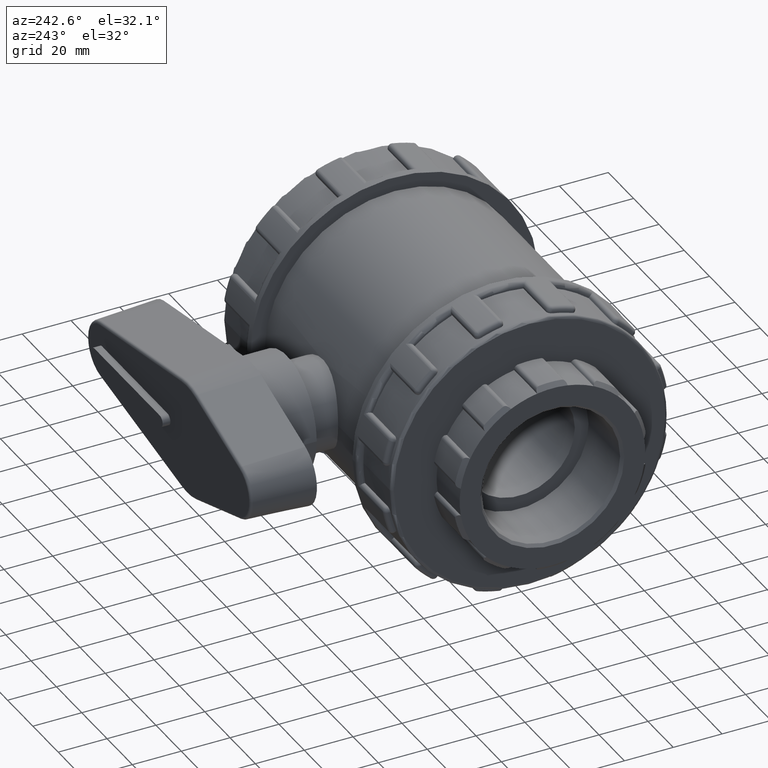
[diagram: clean part render]
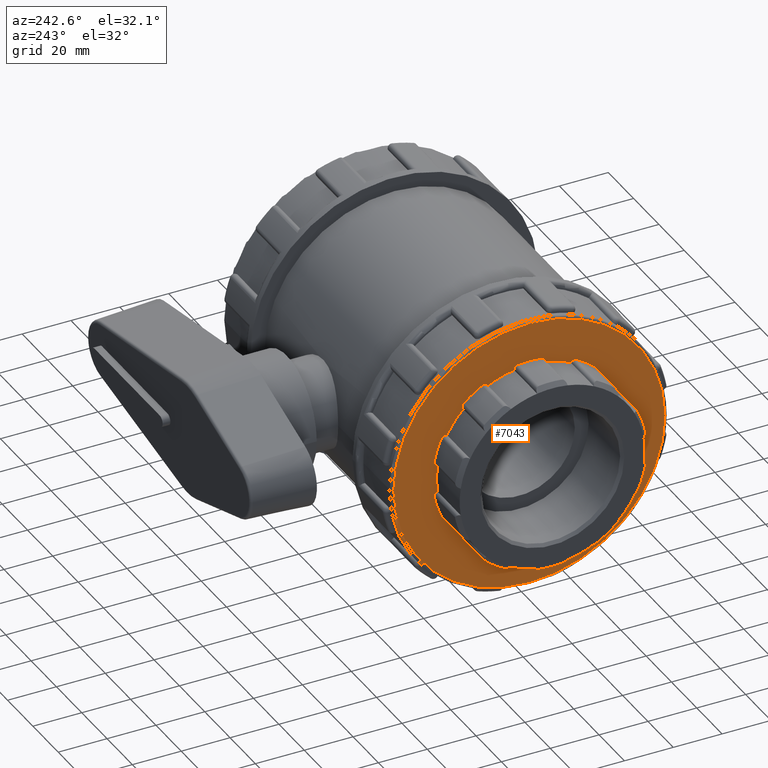
[diagram: same view with one face highlighted and labeled with its STEP entity id]
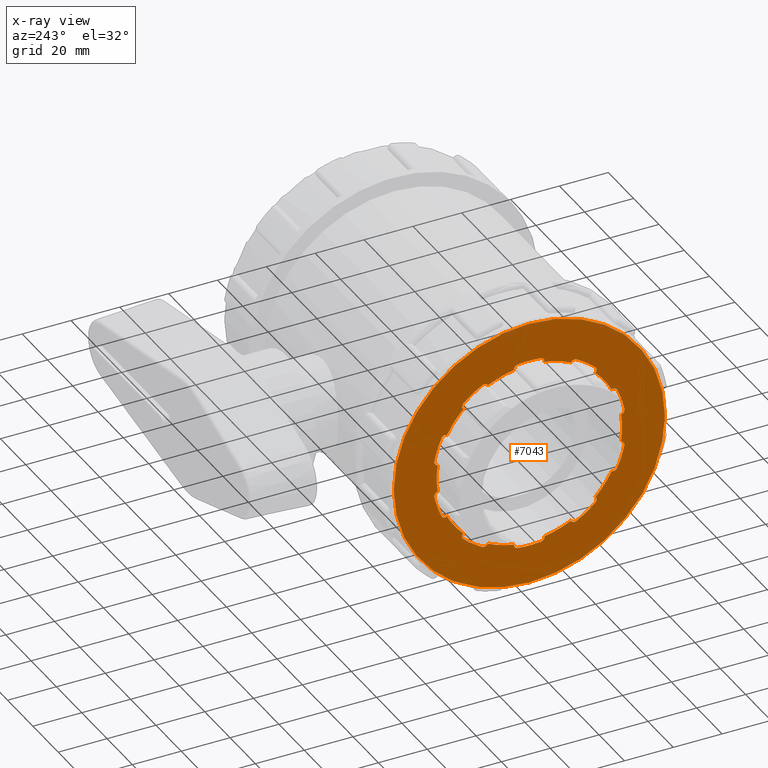
[diagram: x-ray of the same camera — body ghosted, the highlighted face saturated]
A machine part, auxiliary view. The second image highlights one B-rep face of the part: STEP entity #7043.
The next image is the same camera in x-ray: the body ghosted, the highlighted face saturated — about 0% of this face is hidden behind the body in this view.
In plain terms, the highlighted planar face has unit normal (-1, 0, 0).
Its self-contained STEP definition (entity closure, byte-faithful):
#217=FACE_BOUND('',#1298,.T.);
#335=PLANE('',#7994);
#846=FACE_OUTER_BOUND('',#1297,.T.);
#1297=EDGE_LOOP('',(#6298));
#1298=EDGE_LOOP('',(#6299,#6300,#6301,#6302,#6303,#6304,#6305,#6306,#6307,
#6308,#6309,#6310,#6311,#6312,#6313,#6314,#6315,#6316,#6317,#6318,#6319,
#6320,#6321,#6322,#6323,#6324,#6325,#6326,#6327,#6328,#6329,#6330,#6331,
#6332,#6333,#6334,#6335,#6336,#6337,#6338));
#2133=CIRCLE('',#7106,1.69968000000001);
#2136=CIRCLE('',#7111,39.6592);
#2137=CIRCLE('',#7113,1.69968);
#2144=CIRCLE('',#7125,1.69968);
#2147=CIRCLE('',#7130,39.6592);
#2148=CIRCLE('',#7132,1.69968);
#2153=CIRCLE('',#7141,1.69968);
#2156=CIRCLE('',#7146,39.6592);
#2157=CIRCLE('',#7148,1.69968);
#2162=CIRCLE('',#7157,1.69968);
#2165=CIRCLE('',#7162,39.6592);
#2166=CIRCLE('',#7164,1.69968000000001);
#2171=CIRCLE('',#7173,1.69967999999999);
#2174=CIRCLE('',#7178,39.6592);
#2175=CIRCLE('',#7180,1.69968);
#2180=CIRCLE('',#7189,1.69968);
#2183=CIRCLE('',#7194,39.6592);
#2184=CIRCLE('',#7196,1.69968);
#2189=CIRCLE('',#7205,1.69968);
#2192=CIRCLE('',#7210,39.6592);
#2193=CIRCLE('',#7212,1.69968);
#2198=CIRCLE('',#7221,1.69968);
#2201=CIRCLE('',#7226,39.6592);
#2202=CIRCLE('',#7228,1.69968);
#2207=CIRCLE('',#7237,1.69968);
#2208=CIRCLE('',#7239,39.6592);
#2210=CIRCLE('',#7242,1.69968);
#2218=CIRCLE('',#7255,37.95952);
#2220=CIRCLE('',#7258,37.95952);
#2222=CIRCLE('',#7261,37.95952);
#2224=CIRCLE('',#7264,37.95952);
#2226=CIRCLE('',#7267,37.95952);
#2228=CIRCLE('',#7270,37.95952);
#2230=CIRCLE('',#7273,37.95952);
#2232=CIRCLE('',#7276,37.95952);
#2234=CIRCLE('',#7279,37.95952);
#2235=CIRCLE('',#7281,39.6592);
#2264=CIRCLE('',#7330,1.69968);
#2266=CIRCLE('',#7334,1.69968);
#2270=CIRCLE('',#7341,37.95952);
#2619=CIRCLE('',#7992,55.50688);
#2660=VERTEX_POINT('',#10427);
#2661=VERTEX_POINT('',#10428);
#2666=VERTEX_POINT('',#10464);
#2669=VERTEX_POINT('',#10482);
#2670=VERTEX_POINT('',#10484);
#2683=VERTEX_POINT('',#10551);
#2684=VERTEX_POINT('',#10552);
#2689=VERTEX_POINT('',#10588);
#2690=VERTEX_POINT('',#10592);
#2699=VERTEX_POINT('',#10639);
#2700=VERTEX_POINT('',#10640);
#2705=VERTEX_POINT('',#10676);
#2706=VERTEX_POINT('',#10680);
#2715=VERTEX_POINT('',#10727);
#2716=VERTEX_POINT('',#10728);
#2721=VERTEX_POINT('',#10764);
#2722=VERTEX_POINT('',#10768);
#2731=VERTEX_POINT('',#10815);
#2732=VERTEX_POINT('',#10816);
#2737=VERTEX_POINT('',#10852);
#2738=VERTEX_POINT('',#10856);
#2747=VERTEX_POINT('',#10903);
#2748=VERTEX_POINT('',#10904);
#2753=VERTEX_POINT('',#10940);
#2754=VERTEX_POINT('',#10944);
#2763=VERTEX_POINT('',#10991);
#2764=VERTEX_POINT('',#10992);
#2769=VERTEX_POINT('',#11028);
#2770=VERTEX_POINT('',#11032);
#2779=VERTEX_POINT('',#11079);
#2780=VERTEX_POINT('',#11080);
#2785=VERTEX_POINT('',#11116);
#2786=VERTEX_POINT('',#11120);
#2795=VERTEX_POINT('',#11167);
#2796=VERTEX_POINT('',#11168);
#2799=VERTEX_POINT('',#11187);
#2801=VERTEX_POINT('',#11193);
#2812=VERTEX_POINT('',#11284);
#2815=VERTEX_POINT('',#11350);
#2817=VERTEX_POINT('',#11369);
#3263=VERTEX_POINT('',#14030);
#3324=EDGE_CURVE('',#2660,#2661,#2133,.F.);
#3331=EDGE_CURVE('',#2666,#2661,#2136,.T.);
#3335=EDGE_CURVE('',#2670,#2669,#2137,.T.);
#3351=EDGE_CURVE('',#2683,#2684,#2144,.F.);
#3358=EDGE_CURVE('',#2689,#2684,#2147,.T.);
#3360=EDGE_CURVE('',#2690,#2666,#2148,.T.);
#3372=EDGE_CURVE('',#2699,#2700,#2153,.F.);
#3379=EDGE_CURVE('',#2705,#2700,#2156,.T.);
#3381=EDGE_CURVE('',#2706,#2689,#2157,.T.);
#3393=EDGE_CURVE('',#2715,#2716,#2162,.F.);
#3400=EDGE_CURVE('',#2721,#2716,#2165,.T.);
#3402=EDGE_CURVE('',#2722,#2705,#2166,.T.);
#3414=EDGE_CURVE('',#2731,#2732,#2171,.F.);
#3421=EDGE_CURVE('',#2737,#2732,#2174,.T.);
#3423=EDGE_CURVE('',#2738,#2721,#2175,.T.);
#3435=EDGE_CURVE('',#2747,#2748,#2180,.F.);
#3442=EDGE_CURVE('',#2753,#2748,#2183,.T.);
#3444=EDGE_CURVE('',#2754,#2737,#2184,.T.);
#3456=EDGE_CURVE('',#2763,#2764,#2189,.F.);
#3463=EDGE_CURVE('',#2769,#2764,#2192,.T.);
#3465=EDGE_CURVE('',#2770,#2753,#2193,.T.);
#3477=EDGE_CURVE('',#2779,#2780,#2198,.F.);
#3484=EDGE_CURVE('',#2785,#2780,#2201,.T.);
#3486=EDGE_CURVE('',#2786,#2769,#2202,.T.);
#3498=EDGE_CURVE('',#2795,#2796,#2207,.F.);
#3502=EDGE_CURVE('',#2799,#2796,#2208,.T.);
#3505=EDGE_CURVE('',#2801,#2785,#2210,.T.);
#3521=EDGE_CURVE('',#2660,#2670,#2218,.T.);
#3523=EDGE_CURVE('',#2683,#2690,#2220,.T.);
#3525=EDGE_CURVE('',#2699,#2706,#2222,.T.);
#3527=EDGE_CURVE('',#2715,#2722,#2224,.T.);
#3529=EDGE_CURVE('',#2731,#2738,#2226,.T.);
#3531=EDGE_CURVE('',#2747,#2754,#2228,.T.);
#3533=EDGE_CURVE('',#2763,#2770,#2230,.T.);
#3535=EDGE_CURVE('',#2779,#2786,#2232,.T.);
#3537=EDGE_CURVE('',#2795,#2801,#2234,.T.);
#3539=EDGE_CURVE('',#2669,#2812,#2235,.T.);
#3570=EDGE_CURVE('',#2815,#2812,#2264,.F.);
#3574=EDGE_CURVE('',#2817,#2799,#2266,.T.);
#3581=EDGE_CURVE('',#2815,#2817,#2270,.T.);
#4315=EDGE_CURVE('',#3263,#3263,#2619,.T.);
#6298=ORIENTED_EDGE('',*,*,#4315,.F.);
#6299=ORIENTED_EDGE('',*,*,#3502,.T.);
#6300=ORIENTED_EDGE('',*,*,#3498,.F.);
#6301=ORIENTED_EDGE('',*,*,#3537,.T.);
#6302=ORIENTED_EDGE('',*,*,#3505,.T.);
#6303=ORIENTED_EDGE('',*,*,#3484,.T.);
#6304=ORIENTED_EDGE('',*,*,#3477,.F.);
#6305=ORIENTED_EDGE('',*,*,#3535,.T.);
#6306=ORIENTED_EDGE('',*,*,#3486,.T.);
#6307=ORIENTED_EDGE('',*,*,#3463,.T.);
#6308=ORIENTED_EDGE('',*,*,#3456,.F.);
#6309=ORIENTED_EDGE('',*,*,#3533,.T.);
#6310=ORIENTED_EDGE('',*,*,#3465,.T.);
#6311=ORIENTED_EDGE('',*,*,#3442,.T.);
#6312=ORIENTED_EDGE('',*,*,#3435,.F.);
#6313=ORIENTED_EDGE('',*,*,#3531,.T.);
#6314=ORIENTED_EDGE('',*,*,#3444,.T.);
#6315=ORIENTED_EDGE('',*,*,#3421,.T.);
#6316=ORIENTED_EDGE('',*,*,#3414,.F.);
#6317=ORIENTED_EDGE('',*,*,#3529,.T.);
#6318=ORIENTED_EDGE('',*,*,#3423,.T.);
#6319=ORIENTED_EDGE('',*,*,#3400,.T.);
#6320=ORIENTED_EDGE('',*,*,#3393,.F.);
#6321=ORIENTED_EDGE('',*,*,#3527,.T.);
#6322=ORIENTED_EDGE('',*,*,#3402,.T.);
#6323=ORIENTED_EDGE('',*,*,#3379,.T.);
#6324=ORIENTED_EDGE('',*,*,#3372,.F.);
#6325=ORIENTED_EDGE('',*,*,#3525,.T.);
#6326=ORIENTED_EDGE('',*,*,#3381,.T.);
#6327=ORIENTED_EDGE('',*,*,#3358,.T.);
#6328=ORIENTED_EDGE('',*,*,#3351,.F.);
#6329=ORIENTED_EDGE('',*,*,#3523,.T.);
#6330=ORIENTED_EDGE('',*,*,#3360,.T.);
#6331=ORIENTED_EDGE('',*,*,#3331,.T.);
#6332=ORIENTED_EDGE('',*,*,#3324,.F.);
#6333=ORIENTED_EDGE('',*,*,#3521,.T.);
#6334=ORIENTED_EDGE('',*,*,#3335,.T.);
#6335=ORIENTED_EDGE('',*,*,#3539,.T.);
#6336=ORIENTED_EDGE('',*,*,#3570,.F.);
#6337=ORIENTED_EDGE('',*,*,#3581,.T.);
#6338=ORIENTED_EDGE('',*,*,#3574,.T.);
#7043=ADVANCED_FACE('',(#846,#217),#335,.T.);
#7106=AXIS2_PLACEMENT_3D('',#10429,#8142,#8143);
#7111=AXIS2_PLACEMENT_3D('',#10465,#8154,#8155);
#7113=AXIS2_PLACEMENT_3D('',#10485,#8160,#8161);
#7125=AXIS2_PLACEMENT_3D('',#10553,#8190,#8191);
#7130=AXIS2_PLACEMENT_3D('',#10589,#8202,#8203);
#7132=AXIS2_PLACEMENT_3D('',#10593,#8207,#8208);
#7141=AXIS2_PLACEMENT_3D('',#10641,#8230,#8231);
#7146=AXIS2_PLACEMENT_3D('',#10677,#8242,#8243);
#7148=AXIS2_PLACEMENT_3D('',#10681,#8247,#8248);
#7157=AXIS2_PLACEMENT_3D('',#10729,#8270,#8271);
#7162=AXIS2_PLACEMENT_3D('',#10765,#8282,#8283);
#7164=AXIS2_PLACEMENT_3D('',#10769,#8287,#8288);
#7173=AXIS2_PLACEMENT_3D('',#10817,#8310,#8311);
#7178=AXIS2_PLACEMENT_3D('',#10853,#8322,#8323);
#7180=AXIS2_PLACEMENT_3D('',#10857,#8327,#8328);
#7189=AXIS2_PLACEMENT_3D('',#10905,#8350,#8351);
#7194=AXIS2_PLACEMENT_3D('',#10941,#8362,#8363);
#7196=AXIS2_PLACEMENT_3D('',#10945,#8367,#8368);
#7205=AXIS2_PLACEMENT_3D('',#10993,#8390,#8391);
#7210=AXIS2_PLACEMENT_3D('',#11029,#8402,#8403);
#7212=AXIS2_PLACEMENT_3D('',#11033,#8407,#8408);
#7221=AXIS2_PLACEMENT_3D('',#11081,#8430,#8431);
#7226=AXIS2_PLACEMENT_3D('',#11117,#8442,#8443);
#7228=AXIS2_PLACEMENT_3D('',#11121,#8447,#8448);
#7237=AXIS2_PLACEMENT_3D('',#11169,#8470,#8471);
#7239=AXIS2_PLACEMENT_3D('',#11188,#8476,#8477);
#7242=AXIS2_PLACEMENT_3D('',#11194,#8483,#8484);
#7255=AXIS2_PLACEMENT_3D('',#11258,#8514,#8515);
#7258=AXIS2_PLACEMENT_3D('',#11261,#8520,#8521);
#7261=AXIS2_PLACEMENT_3D('',#11264,#8526,#8527);
#7264=AXIS2_PLACEMENT_3D('',#11267,#8532,#8533);
#7267=AXIS2_PLACEMENT_3D('',#11270,#8538,#8539);
#7270=AXIS2_PLACEMENT_3D('',#11273,#8544,#8545);
#7273=AXIS2_PLACEMENT_3D('',#11276,#8550,#8551);
#7276=AXIS2_PLACEMENT_3D('',#11279,#8556,#8557);
#7279=AXIS2_PLACEMENT_3D('',#11282,#8562,#8563);
#7281=AXIS2_PLACEMENT_3D('',#11286,#8567,#8568);
#7330=AXIS2_PLACEMENT_3D('',#11351,#8666,#8667);
#7334=AXIS2_PLACEMENT_3D('',#11370,#8675,#8676);
#7341=AXIS2_PLACEMENT_3D('',#11382,#8692,#8693);
#7992=AXIS2_PLACEMENT_3D('',#14031,#10282,#10283);
#7994=AXIS2_PLACEMENT_3D('',#14034,#10286,#10287);
#8142=DIRECTION('center_axis',(1.,0.,0.));
#8143=DIRECTION('ref_axis',(0.,0.680089295318479,-0.733129286274403));
#8154=DIRECTION('center_axis',(1.,0.,0.));
#8155=DIRECTION('ref_axis',(0.,0.,-1.));
#8160=DIRECTION('center_axis',(1.,0.,0.));
#8161=DIRECTION('ref_axis',(0.,0.907406534943978,-0.420253947442452));
#8190=DIRECTION('center_axis',(1.,0.,0.));
#8191=DIRECTION('ref_axis',(0.,0.119281215109332,-0.99286050970015));
#8202=DIRECTION('center_axis',(1.,0.,0.));
#8203=DIRECTION('ref_axis',(0.,0.,-1.));
#8207=DIRECTION('center_axis',(1.,0.,0.));
#8208=DIRECTION('ref_axis',(0.,0.487088235052192,-0.873352764507986));
#8230=DIRECTION('center_axis',(1.,0.,0.));
#8231=DIRECTION('ref_axis',(0.,-0.487088235052192,-0.873352764507986));
#8242=DIRECTION('center_axis',(1.,0.,0.));
#8243=DIRECTION('ref_axis',(0.,0.,-1.));
#8247=DIRECTION('center_axis',(1.,0.,0.));
#8248=DIRECTION('ref_axis',(0.,-0.119281215109332,-0.99286050970015));
#8270=DIRECTION('center_axis',(1.,0.,0.));
#8271=DIRECTION('ref_axis',(0.,-0.907406534943978,-0.420253947442452));
#8282=DIRECTION('center_axis',(1.,0.,0.));
#8283=DIRECTION('ref_axis',(0.,0.,-1.));
#8287=DIRECTION('center_axis',(1.,0.,0.));
#8288=DIRECTION('ref_axis',(0.,-0.680089295318479,-0.733129286274403));
#8310=DIRECTION('center_axis',(1.,0.,0.));
#8311=DIRECTION('ref_axis',(0.,-0.981126380100932,0.193367593639784));
#8322=DIRECTION('center_axis',(1.,0.,0.));
#8323=DIRECTION('ref_axis',(0.,0.,-1.));
#8327=DIRECTION('center_axis',(1.,0.,0.));
#8328=DIRECTION('ref_axis',(0.,-0.981126380100932,-0.193367593639785));
#8350=DIRECTION('center_axis',(1.,0.,0.));
#8351=DIRECTION('ref_axis',(0.,-0.68008929531848,0.733129286274402));
#8362=DIRECTION('center_axis',(1.,0.,0.));
#8363=DIRECTION('ref_axis',(0.,0.,-1.));
#8367=DIRECTION('center_axis',(1.,0.,0.));
#8368=DIRECTION('ref_axis',(0.,-0.907406534943978,0.420253947442452));
#8390=DIRECTION('center_axis',(1.,0.,0.));
#8391=DIRECTION('ref_axis',(0.,-0.119281215109332,0.99286050970015));
#8402=DIRECTION('center_axis',(1.,0.,0.));
#8403=DIRECTION('ref_axis',(0.,0.,-1.));
#8407=DIRECTION('center_axis',(1.,0.,0.));
#8408=DIRECTION('ref_axis',(0.,-0.487088235052192,0.873352764507986));
#8430=DIRECTION('center_axis',(1.,0.,0.));
#8431=DIRECTION('ref_axis',(0.,0.487088235052193,0.873352764507985));
#8442=DIRECTION('center_axis',(1.,0.,0.));
#8443=DIRECTION('ref_axis',(0.,0.,-1.));
#8447=DIRECTION('center_axis',(1.,0.,0.));
#8448=DIRECTION('ref_axis',(0.,0.119281215109332,0.99286050970015));
#8470=DIRECTION('center_axis',(1.,0.,0.));
#8471=DIRECTION('ref_axis',(0.,0.907406534943978,0.420253947442452));
#8476=DIRECTION('center_axis',(1.,0.,0.));
#8477=DIRECTION('ref_axis',(0.,0.,-1.));
#8483=DIRECTION('center_axis',(1.,0.,0.));
#8484=DIRECTION('ref_axis',(0.,0.68008929531848,0.733129286274402));
#8514=DIRECTION('center_axis',(1.,0.,0.));
#8515=DIRECTION('ref_axis',(0.,0.587785252292473,0.809016994374947));
#8520=DIRECTION('center_axis',(1.,0.,0.));
#8521=DIRECTION('ref_axis',(0.,0.951056516295154,0.309016994374947));
#8526=DIRECTION('center_axis',(1.,0.,0.));
#8527=DIRECTION('ref_axis',(0.,0.951056516295154,-0.309016994374948));
#8532=DIRECTION('center_axis',(1.,0.,0.));
#8533=DIRECTION('ref_axis',(0.,0.587785252292473,-0.809016994374948));
#8538=DIRECTION('center_axis',(1.,0.,0.));
#8539=DIRECTION('ref_axis',(0.,-1.22464679914735E-16,-1.));
#8544=DIRECTION('center_axis',(1.,0.,0.));
#8545=DIRECTION('ref_axis',(0.,-0.587785252292473,-0.809016994374947));
#8550=DIRECTION('center_axis',(1.,0.,0.));
#8551=DIRECTION('ref_axis',(0.,-0.951056516295154,-0.309016994374947));
#8556=DIRECTION('center_axis',(1.,0.,0.));
#8557=DIRECTION('ref_axis',(0.,-0.951056516295154,0.309016994374947));
#8562=DIRECTION('center_axis',(1.,0.,0.));
#8563=DIRECTION('ref_axis',(0.,-0.587785252292473,0.809016994374947));
#8567=DIRECTION('center_axis',(1.,0.,0.));
#8568=DIRECTION('ref_axis',(0.,0.,-1.));
#8666=DIRECTION('center_axis',(1.,0.,0.));
#8667=DIRECTION('ref_axis',(0.,0.981126380100932,-0.193367593639785));
#8675=DIRECTION('center_axis',(1.,0.,0.));
#8676=DIRECTION('ref_axis',(0.,0.981126380100932,0.193367593639785));
#8692=DIRECTION('center_axis',(1.,0.,0.));
#8693=DIRECTION('ref_axis',(0.,0.,1.));
#10282=DIRECTION('center_axis',(1.,0.,0.));
#10283=DIRECTION('ref_axis',(0.,-1.,1.83697019872103E-16));
#10286=DIRECTION('center_axis',(-1.,0.,0.));
#10287=DIRECTION('ref_axis',(0.,0.,1.));
#10427=CARTESIAN_POINT('',(-66.3,27.0357569449323,-26.6456939306324));
#10428=CARTESIAN_POINT('',(-66.3,26.9717973808946,-29.0753209902138));
#10429=CARTESIAN_POINT('Origin',(-66.3,25.8158632074277,-27.8292358049189));
#10464=CARTESIAN_POINT('',(-66.3,19.3175297315819,-34.6364719581751));
#10465=CARTESIAN_POINT('Origin',(-66.3,0.,0.));
#10482=CARTESIAN_POINT('',(-66.3,35.9870172506502,-16.6669353524097));
#10484=CARTESIAN_POINT('',(-66.3,33.6960691957088,-17.478560563971));
#10485=CARTESIAN_POINT('Origin',(-66.3,34.4447165113366,-15.9526381230207));
#10551=CARTESIAN_POINT('',(-66.3,6.21044089471595,-37.4480384335901));
#10552=CARTESIAN_POINT('',(-66.3,4.73059756626401,-39.3760535263002));
#10553=CARTESIAN_POINT('Origin',(-66.3,4.52785767056698,-37.688508375173));
#10588=CARTESIAN_POINT('',(-66.3,-4.73059756626402,-39.3760535263002));
#10589=CARTESIAN_POINT('Origin',(-66.3,0.,0.));
#10592=CARTESIAN_POINT('',(-66.3,16.9870524921596,-33.9465050669287));
#10593=CARTESIAN_POINT('Origin',(-66.3,18.4896356002284,-33.1520517313962));
#10639=CARTESIAN_POINT('',(-66.3,-16.9870524921596,-33.9465050669287));
#10640=CARTESIAN_POINT('',(-66.3,-19.3175297315819,-34.6364719581751));
#10641=CARTESIAN_POINT('Origin',(-66.3,-18.4896356002284,-33.1520517313961));
#10676=CARTESIAN_POINT('',(-66.3,-26.9717973808946,-29.0753209902138));
#10677=CARTESIAN_POINT('Origin',(-66.3,0.,0.));
#10680=CARTESIAN_POINT('',(-66.3,-6.21044089471596,-37.4480384335901));
#10681=CARTESIAN_POINT('Origin',(-66.3,-4.52785767056699,-37.688508375173));
#10727=CARTESIAN_POINT('',(-66.3,-33.6960691957088,-17.478560563971));
#10728=CARTESIAN_POINT('',(-66.3,-35.9870172506502,-16.6669353524097));
#10729=CARTESIAN_POINT('Origin',(-66.3,-34.4447165113366,-15.9526381230207));
#10764=CARTESIAN_POINT('',(-66.3,-38.9106873336989,-7.66880406967894));
#10765=CARTESIAN_POINT('Origin',(-66.3,0.,0.));
#10768=CARTESIAN_POINT('',(-66.3,-27.0357569449323,-26.6456939306324));
#10769=CARTESIAN_POINT('Origin',(-66.3,-25.8158632074277,-27.8292358049189));
#10815=CARTESIAN_POINT('',(-66.3,-37.5343327537656,5.6656));
#10816=CARTESIAN_POINT('',(-66.3,-38.9106873336989,7.66880406967894));
#10817=CARTESIAN_POINT('Origin',(-66.3,-37.2430864479689,7.34014103812127));
#10852=CARTESIAN_POINT('',(-66.3,-35.9870172506502,16.6669353524097));
#10853=CARTESIAN_POINT('Origin',(-66.3,0.,0.));
#10856=CARTESIAN_POINT('',(-66.3,-37.5343327537656,-5.6656));
#10857=CARTESIAN_POINT('Origin',(-66.3,-37.2430864479689,-7.34014103812127));
#10903=CARTESIAN_POINT('',(-66.3,-27.0357569449323,26.6456939306324));
#10904=CARTESIAN_POINT('',(-66.3,-26.9717973808946,29.0753209902138));
#10905=CARTESIAN_POINT('Origin',(-66.3,-25.8158632074277,27.8292358049189));
#10940=CARTESIAN_POINT('',(-66.3,-19.3175297315819,34.6364719581751));
#10941=CARTESIAN_POINT('Origin',(-66.3,0.,0.));
#10944=CARTESIAN_POINT('',(-66.3,-33.6960691957088,17.478560563971));
#10945=CARTESIAN_POINT('Origin',(-66.3,-34.4447165113366,15.9526381230207));
#10991=CARTESIAN_POINT('',(-66.3,-6.21044089471597,37.4480384335901));
#10992=CARTESIAN_POINT('',(-66.3,-4.73059756626403,39.3760535263002));
#10993=CARTESIAN_POINT('Origin',(-66.3,-4.527857670567,37.688508375173));
#11028=CARTESIAN_POINT('',(-66.3,4.73059756626402,39.3760535263002));
#11029=CARTESIAN_POINT('Origin',(-66.3,0.,0.));
#11032=CARTESIAN_POINT('',(-66.3,-16.9870524921596,33.9465050669287));
#11033=CARTESIAN_POINT('Origin',(-66.3,-18.4896356002284,33.1520517313961));
#11079=CARTESIAN_POINT('',(-66.3,16.9870524921596,33.9465050669287));
#11080=CARTESIAN_POINT('',(-66.3,19.3175297315819,34.6364719581751));
#11081=CARTESIAN_POINT('Origin',(-66.3,18.4896356002284,33.1520517313961));
#11116=CARTESIAN_POINT('',(-66.3,26.9717973808946,29.0753209902138));
#11117=CARTESIAN_POINT('Origin',(-66.3,0.,0.));
#11120=CARTESIAN_POINT('',(-66.3,6.21044089471595,37.4480384335901));
#11121=CARTESIAN_POINT('Origin',(-66.3,4.52785767056699,37.688508375173));
#11167=CARTESIAN_POINT('',(-66.3,33.6960691957088,17.478560563971));
#11168=CARTESIAN_POINT('',(-66.3,35.9870172506502,16.6669353524097));
#11169=CARTESIAN_POINT('Origin',(-66.3,34.4447165113366,15.9526381230207));
#11187=CARTESIAN_POINT('',(-66.3,38.9106873336989,7.66880406967894));
#11188=CARTESIAN_POINT('Origin',(-66.3,0.,0.));
#11193=CARTESIAN_POINT('',(-66.3,27.0357569449323,26.6456939306324));
#11194=CARTESIAN_POINT('Origin',(-66.3,25.8158632074277,27.8292358049189));
#11258=CARTESIAN_POINT('Origin',(-66.3,0.,0.));
#11261=CARTESIAN_POINT('Origin',(-66.3,0.,0.));
#11264=CARTESIAN_POINT('Origin',(-66.3,0.,0.));
#11267=CARTESIAN_POINT('Origin',(-66.3,0.,0.));
#11270=CARTESIAN_POINT('Origin',(-66.3,0.,0.));
#11273=CARTESIAN_POINT('Origin',(-66.3,0.,0.));
#11276=CARTESIAN_POINT('Origin',(-66.3,0.,0.));
#11279=CARTESIAN_POINT('Origin',(-66.3,0.,0.));
#11282=CARTESIAN_POINT('Origin',(-66.3,0.,0.));
#11284=CARTESIAN_POINT('',(-66.3,38.9106873336989,-7.66880406967893));
#11286=CARTESIAN_POINT('Origin',(-66.3,0.,0.));
#11350=CARTESIAN_POINT('',(-66.3,37.5343327537656,-5.6656));
#11351=CARTESIAN_POINT('Origin',(-66.3,37.2430864479689,-7.34014103812126));
#11369=CARTESIAN_POINT('',(-66.3,37.5343327537656,5.6656));
#11370=CARTESIAN_POINT('Origin',(-66.3,37.2430864479689,7.34014103812127));
#11382=CARTESIAN_POINT('Origin',(-66.3,0.,0.));
#14030=CARTESIAN_POINT('',(-66.3,55.50688,-3.39881614613281E-15));
#14031=CARTESIAN_POINT('Origin',(-66.3,0.,0.));
#14034=CARTESIAN_POINT('Origin',(-66.3,56.64,0.));